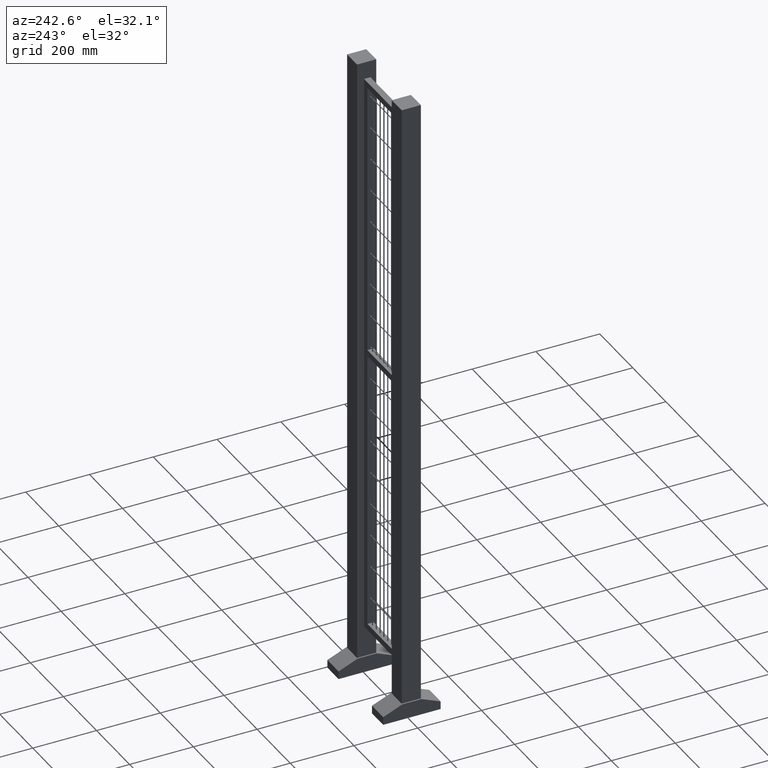
[diagram: clean part render]
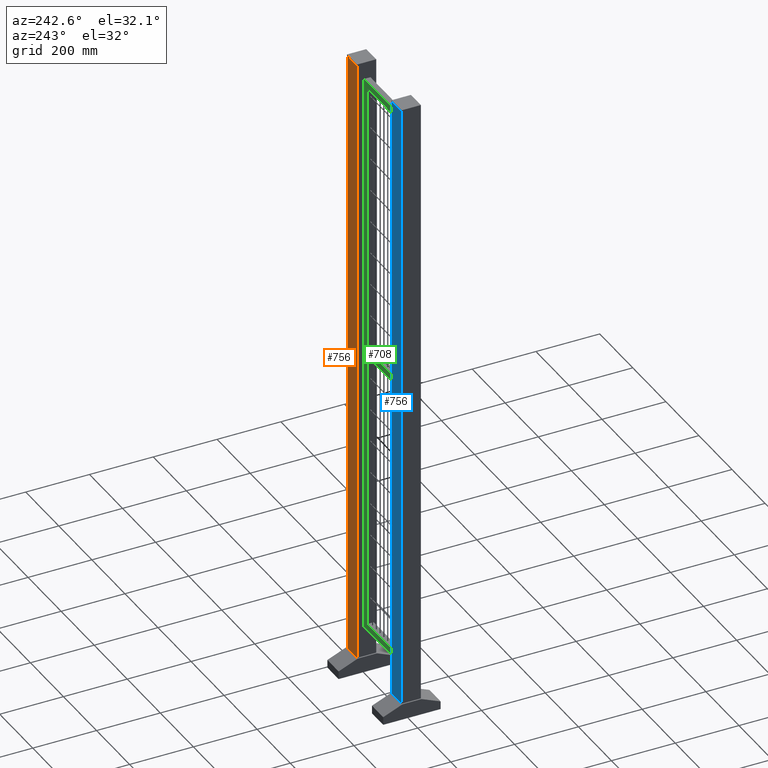
[diagram: same view with three faces highlighted in distinct colors, each labeled with its STEP entity id]
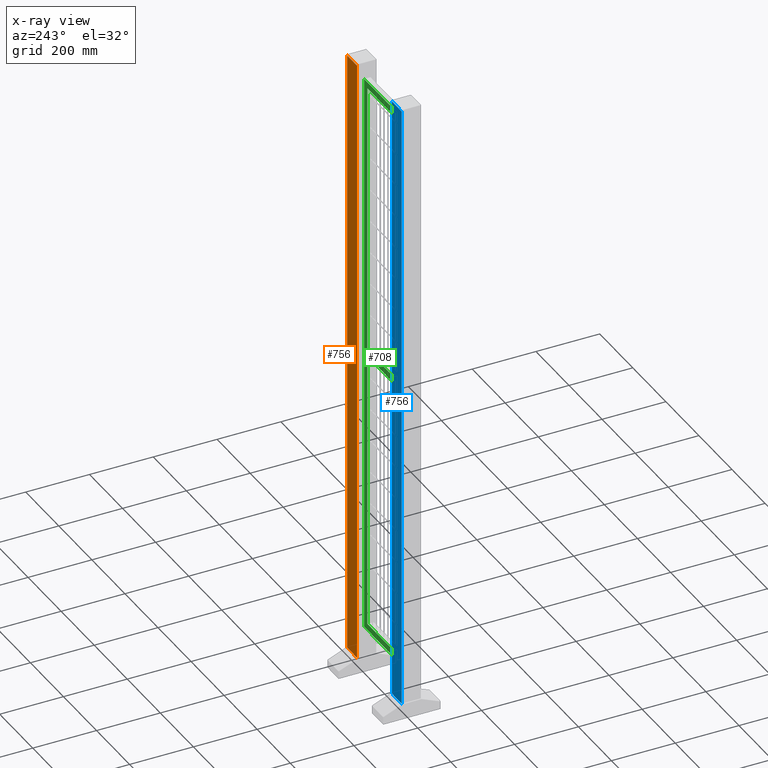
[diagram: x-ray of the same camera — body ghosted, the three highlighted faces saturated]
A machine part, auxiliary view with three faces highlighted in distinct colors.
The next image is the same camera in x-ray (body ghosted, the three faces saturated) — at least one of them is partly hidden behind the body in this view.
Their STEP definitions:

[orange] entity #756 — the highlighted planar face has unit normal (0, 1, 0).
#140=LINE('',#2652,#234);
#141=LINE('',#2655,#235);
#142=LINE('',#2657,#236);
#143=LINE('',#2659,#237);
#234=VECTOR('',#2259,1.);
#235=VECTOR('',#2260,1.);
#236=VECTOR('',#2261,1.);
#237=VECTOR('',#2262,1.);
#561=PLANE('',#1830);
#642=FACE_OUTER_BOUND('',#1013,.T.);
#756=ADVANCED_FACE('',(#642),#561,.T.);
#1013=EDGE_LOOP('',(#1303,#1304,#1305,#1306));
#1303=ORIENTED_EDGE('',*,*,#1589,.F.);
#1304=ORIENTED_EDGE('',*,*,#1590,.F.);
#1305=ORIENTED_EDGE('',*,*,#1591,.T.);
#1306=ORIENTED_EDGE('',*,*,#1592,.T.);
#1439=VERTEX_POINT('',#2653);
#1440=VERTEX_POINT('',#2654);
#1441=VERTEX_POINT('',#2656);
#1442=VERTEX_POINT('',#2658);
#1589=EDGE_CURVE('',#1439,#1440,#140,.T.);
#1590=EDGE_CURVE('',#1441,#1439,#141,.T.);
#1591=EDGE_CURVE('',#1441,#1442,#142,.T.);
#1592=EDGE_CURVE('',#1442,#1440,#143,.T.);
#1830=AXIS2_PLACEMENT_3D('',#2660,#2263,#2264);
#2259=DIRECTION('',(0.,0.,-1.));
#2260=DIRECTION('',(0.,1.,0.));
#2261=DIRECTION('',(0.,0.,-1.));
#2262=DIRECTION('',(0.,1.,0.));
#2263=DIRECTION('',(1.,0.,0.));
#2264=DIRECTION('',(0.,0.,-1.));
#2652=CARTESIAN_POINT('',(30.,30.,1996.));
#2653=CARTESIAN_POINT('',(30.,30.,1996.));
#2654=CARTESIAN_POINT('',(30.,30.,50.));
#2655=CARTESIAN_POINT('',(30.,-30.,1996.));
#2656=CARTESIAN_POINT('',(30.,-30.,1996.));
#2657=CARTESIAN_POINT('',(30.,-30.,1996.));
#2658=CARTESIAN_POINT('',(30.,-30.,50.));
#2659=CARTESIAN_POINT('',(30.,-30.,50.));
#2660=CARTESIAN_POINT('',(30.,-30.,1996.));

[blue] entity #756 — the highlighted planar face has unit normal (-0, 1, 0).
#140=LINE('',#2652,#234);
#141=LINE('',#2655,#235);
#142=LINE('',#2657,#236);
#143=LINE('',#2659,#237);
#234=VECTOR('',#2259,1.);
#235=VECTOR('',#2260,1.);
#236=VECTOR('',#2261,1.);
#237=VECTOR('',#2262,1.);
#561=PLANE('',#1830);
#642=FACE_OUTER_BOUND('',#1013,.T.);
#756=ADVANCED_FACE('',(#642),#561,.T.);
#1013=EDGE_LOOP('',(#1303,#1304,#1305,#1306));
#1303=ORIENTED_EDGE('',*,*,#1589,.F.);
#1304=ORIENTED_EDGE('',*,*,#1590,.F.);
#1305=ORIENTED_EDGE('',*,*,#1591,.T.);
#1306=ORIENTED_EDGE('',*,*,#1592,.T.);
#1439=VERTEX_POINT('',#2653);
#1440=VERTEX_POINT('',#2654);
#1441=VERTEX_POINT('',#2656);
#1442=VERTEX_POINT('',#2658);
#1589=EDGE_CURVE('',#1439,#1440,#140,.T.);
#1590=EDGE_CURVE('',#1441,#1439,#141,.T.);
#1591=EDGE_CURVE('',#1441,#1442,#142,.T.);
#1592=EDGE_CURVE('',#1442,#1440,#143,.T.);
#1830=AXIS2_PLACEMENT_3D('',#2660,#2263,#2264);
#2259=DIRECTION('',(0.,0.,-1.));
#2260=DIRECTION('',(0.,1.,0.));
#2261=DIRECTION('',(0.,0.,-1.));
#2262=DIRECTION('',(0.,1.,0.));
#2263=DIRECTION('',(1.,0.,0.));
#2264=DIRECTION('',(0.,0.,-1.));
#2652=CARTESIAN_POINT('',(30.,30.,1996.));
#2653=CARTESIAN_POINT('',(30.,30.,1996.));
#2654=CARTESIAN_POINT('',(30.,30.,50.));
#2655=CARTESIAN_POINT('',(30.,-30.,1996.));
#2656=CARTESIAN_POINT('',(30.,-30.,1996.));
#2657=CARTESIAN_POINT('',(30.,-30.,1996.));
#2658=CARTESIAN_POINT('',(30.,-30.,50.));
#2659=CARTESIAN_POINT('',(30.,-30.,50.));
#2660=CARTESIAN_POINT('',(30.,-30.,1996.));

[green] entity #708 — the highlighted planar face has unit normal (0, -1, 0).
#60=LINE('',#2400,#154);
#64=LINE('',#2409,#158);
#66=LINE('',#2433,#160);
#69=LINE('',#2439,#163);
#74=LINE('',#2449,#168);
#77=LINE('',#2455,#171);
#78=LINE('',#2457,#172);
#82=LINE('',#2466,#176);
#85=LINE('',#2472,#179);
#88=LINE('',#2478,#182);
#92=LINE('',#2484,#186);
#93=LINE('',#2485,#187);
#154=VECTOR('',#1993,1.);
#158=VECTOR('',#1999,1.);
#160=VECTOR('',#2027,1.);
#163=VECTOR('',#2032,1.);
#168=VECTOR('',#2039,1.);
#171=VECTOR('',#2044,1.);
#172=VECTOR('',#2047,1.);
#176=VECTOR('',#2053,1.);
#179=VECTOR('',#2058,1.);
#182=VECTOR('',#2063,1.);
#186=VECTOR('',#2071,1.);
#187=VECTOR('',#2072,1.);
#524=PLANE('',#1760);
#708=ADVANCED_FACE('',(#839,#840,#841),#524,.F.);
#839=FACE_BOUND('',#950,.T.);
#840=FACE_BOUND('',#951,.T.);
#841=FACE_BOUND('',#952,.T.);
#950=EDGE_LOOP('',(#1143,#1144,#1145,#1146));
#951=EDGE_LOOP('',(#1147,#1148,#1149,#1150));
#952=EDGE_LOOP('',(#1151,#1152,#1153,#1154));
#1143=ORIENTED_EDGE('',*,*,#1519,.F.);
#1144=ORIENTED_EDGE('',*,*,#1501,.T.);
#1145=ORIENTED_EDGE('',*,*,#1496,.T.);
#1146=ORIENTED_EDGE('',*,*,#1483,.T.);
#1147=ORIENTED_EDGE('',*,*,#1505,.F.);
#1148=ORIENTED_EDGE('',*,*,#1515,.F.);
#1149=ORIENTED_EDGE('',*,*,#1512,.F.);
#1150=ORIENTED_EDGE('',*,*,#1509,.F.);
#1151=ORIENTED_EDGE('',*,*,#1479,.T.);
#1152=ORIENTED_EDGE('',*,*,#1520,.F.);
#1153=ORIENTED_EDGE('',*,*,#1504,.T.);
#1154=ORIENTED_EDGE('',*,*,#1493,.T.);
#1359=VERTEX_POINT('',#2399);
#1360=VERTEX_POINT('',#2401);
#1363=VERTEX_POINT('',#2408);
#1364=VERTEX_POINT('',#2410);
#1373=VERTEX_POINT('',#2434);
#1375=VERTEX_POINT('',#2440);
#1378=VERTEX_POINT('',#2447);
#1380=VERTEX_POINT('',#2453);
#1381=VERTEX_POINT('',#2458);
#1382=VERTEX_POINT('',#2459);
#1385=VERTEX_POINT('',#2467);
#1387=VERTEX_POINT('',#2473);
#1479=EDGE_CURVE('',#1360,#1359,#60,.T.);
#1483=EDGE_CURVE('',#1364,#1363,#64,.T.);
#1493=EDGE_CURVE('',#1373,#1360,#66,.T.);
#1496=EDGE_CURVE('',#1375,#1364,#69,.T.);
#1501=EDGE_CURVE('',#1378,#1375,#74,.T.);
#1504=EDGE_CURVE('',#1380,#1373,#77,.T.);
#1505=EDGE_CURVE('',#1381,#1382,#78,.T.);
#1509=EDGE_CURVE('',#1382,#1385,#82,.T.);
#1512=EDGE_CURVE('',#1385,#1387,#85,.T.);
#1515=EDGE_CURVE('',#1387,#1381,#88,.T.);
#1519=EDGE_CURVE('',#1378,#1363,#92,.T.);
#1520=EDGE_CURVE('',#1380,#1359,#93,.T.);
#1760=AXIS2_PLACEMENT_3D('',#2486,#2073,#2074);
#1993=DIRECTION('',(0.,0.,1.));
#1999=DIRECTION('',(0.,0.,-1.));
#2027=DIRECTION('',(1.,0.,0.));
#2032=DIRECTION('',(-1.,0.,0.));
#2039=DIRECTION('',(0.,0.,1.));
#2044=DIRECTION('',(0.,0.,-1.));
#2047=DIRECTION('',(0.,0.,1.));
#2053=DIRECTION('',(-1.,0.,0.));
#2058=DIRECTION('',(0.,0.,-1.));
#2063=DIRECTION('',(1.,0.,0.));
#2071=DIRECTION('',(-1.,0.,0.));
#2072=DIRECTION('',(1.,0.,0.));
#2073=DIRECTION('',(0.,-1.,0.));
#2074=DIRECTION('',(0.,0.,-1.));
#2399=CARTESIAN_POINT('',(79.9999999999991,10.,-3.33066907387547E-13));
#2400=CARTESIAN_POINT('',(79.9999999999991,10.,-880.));
#2401=CARTESIAN_POINT('',(79.9999999999991,10.,-880.));
#2408=CARTESIAN_POINT('',(-79.9999999999991,10.,19.9999999999997));
#2409=CARTESIAN_POINT('',(-79.9999999999991,10.,880.));
#2410=CARTESIAN_POINT('',(-79.9999999999991,10.,880.));
#2433=CARTESIAN_POINT('',(-79.9999999999991,10.,-880.));
#2434=CARTESIAN_POINT('',(-79.9999999999991,10.,-880.));
#2439=CARTESIAN_POINT('',(79.9999999999991,10.,880.));
#2440=CARTESIAN_POINT('',(79.9999999999991,10.,880.));
#2447=CARTESIAN_POINT('',(80.0000000000009,10.,19.9999999999997));
#2449=CARTESIAN_POINT('',(79.9999999999991,10.,-880.));
#2453=CARTESIAN_POINT('',(-80.0000000000009,10.,0.));
#2455=CARTESIAN_POINT('',(-79.9999999999991,10.,880.));
#2457=CARTESIAN_POINT('',(99.9999999999991,10.,-900.));
#2458=CARTESIAN_POINT('',(99.9999999999991,10.,-900.));
#2459=CARTESIAN_POINT('',(99.9999999999991,10.,900.));
#2466=CARTESIAN_POINT('',(99.9999999999991,10.,900.));
#2467=CARTESIAN_POINT('',(-99.9999999999991,10.,900.));
#2472=CARTESIAN_POINT('',(-99.9999999999991,10.,900.));
#2473=CARTESIAN_POINT('',(-99.9999999999991,10.,-900.));
#2478=CARTESIAN_POINT('',(-99.9999999999991,10.,-900.));
#2484=CARTESIAN_POINT('',(80.0000000000009,10.,19.9999999999997));
#2485=CARTESIAN_POINT('',(-80.0000000000009,10.,-3.41060513164848E-13));
#2486=CARTESIAN_POINT('',(0.,10.,0.));